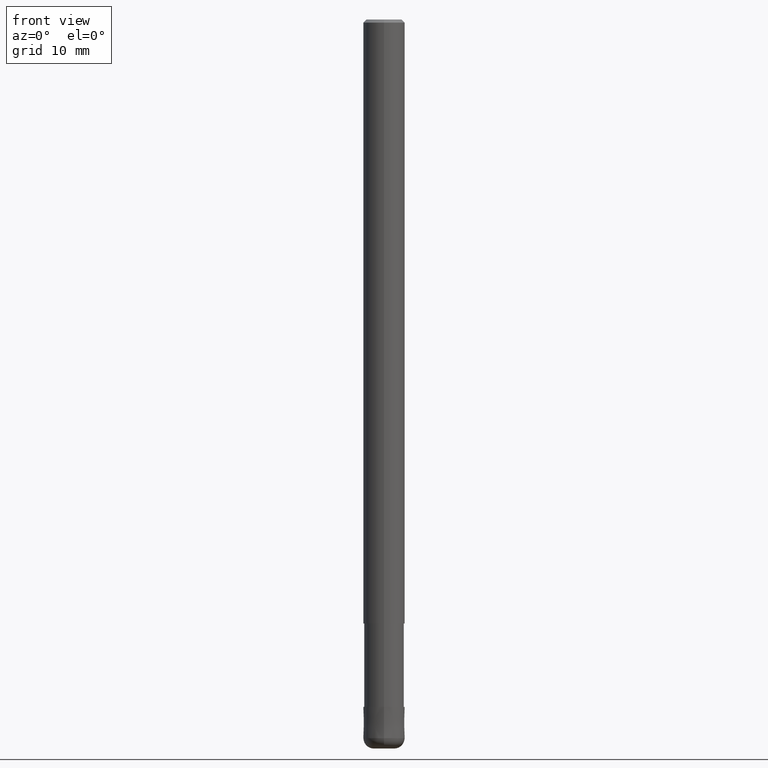
[diagram: clean part render]
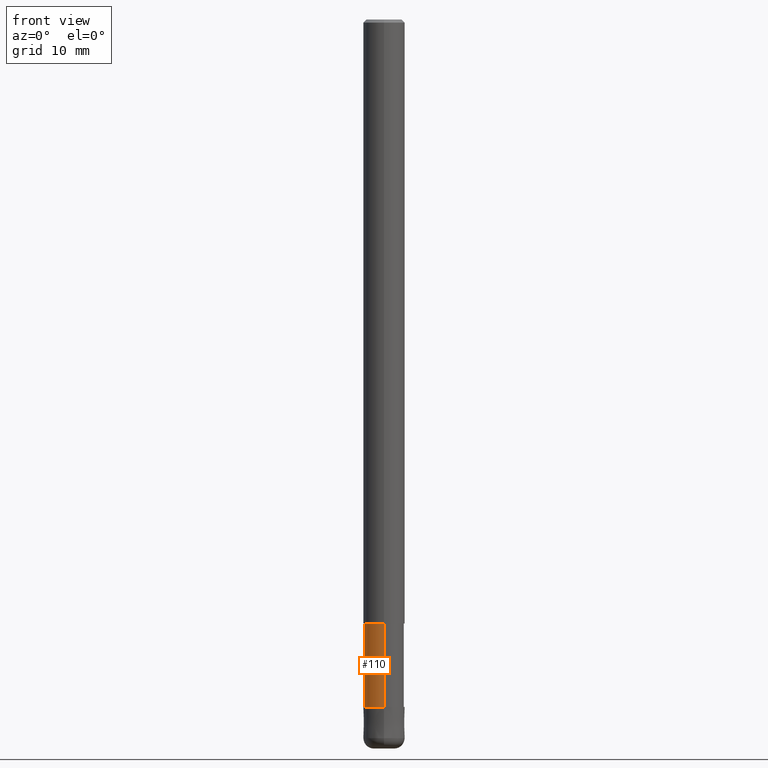
[diagram: same view with one face highlighted and labeled with its STEP entity id]
A machine part, front view. The second image highlights one B-rep face of the part: STEP entity #110.
In plain terms, the highlighted cylindrical surface (edge-blend (fillet) strip) has radius 1.91 mm, axis along (-0, -0, 1).
Its self-contained STEP definition (entity closure, byte-faithful):
#96=VERTEX_POINT('',#233);
#98=VERTEX_POINT('',#235);
#110=ADVANCED_FACE('',(#249),#250,.T.);
#120=VERTEX_POINT('',#263);
#136=EDGE_CURVE('',#98,#96,#279,.T.);
#142=EDGE_CURVE('',#194,#96,#286,.T.);
#194=VERTEX_POINT('',#345);
#196=EDGE_CURVE('',#120,#194,#347,.T.);
#206=EDGE_CURVE('',#98,#120,#359,.T.);
#233=CARTESIAN_POINT('',(0.0,1.90995,-66.0));
#235=CARTESIAN_POINT('',(2.33893690548305E-016,-1.90995,-66.0));
#249=FACE_OUTER_BOUND('',#398,.T.);
#250=CYLINDRICAL_SURFACE('',#399,1.90995);
#263=CARTESIAN_POINT('',(2.33893690548305E-016,-1.90995,-58.0));
#279=CIRCLE('',#435,1.90995);
#286=LINE('',#445,#446);
#345=CARTESIAN_POINT('',(0.0,1.90995,-58.0));
#347=CIRCLE('',#521,1.90995);
#359=LINE('',#534,#535);
#398=EDGE_LOOP('',(#564,#565,#566,#567));
#399=AXIS2_PLACEMENT_3D('',#568,#569,#570);
#435=AXIS2_PLACEMENT_3D('',#606,#607,#608);
#445=CARTESIAN_POINT('',(-2.33893690548305E-016,1.90995,-62.0));
#446=VECTOR('',#616,1.0);
#521=AXIS2_PLACEMENT_3D('',#693,#694,#695);
#534=CARTESIAN_POINT('',(2.33893690548305E-016,-1.90995,-62.0));
#535=VECTOR('',#712,1.0);
#564=ORIENTED_EDGE('',*,*,#142,.T.);
#565=ORIENTED_EDGE('',*,*,#136,.F.);
#566=ORIENTED_EDGE('',*,*,#206,.T.);
#567=ORIENTED_EDGE('',*,*,#196,.T.);
#568=CARTESIAN_POINT('',(0.0,0.0,-62.0));
#569=DIRECTION('',(-0.0,-0.0,1.0));
#570=DIRECTION('',(0.0,1.0,0.0));
#606=CARTESIAN_POINT('',(0.0,0.0,-66.0));
#607=DIRECTION('',(0.0,0.0,-1.0));
#608=DIRECTION('',(0.0,1.0,0.0));
#616=DIRECTION('',(0.0,0.0,-1.0));
#693=CARTESIAN_POINT('',(0.0,0.0,-58.0));
#694=DIRECTION('',(0.0,0.0,-1.0));
#695=DIRECTION('',(0.0,1.0,0.0));
#712=DIRECTION('',(-0.0,-0.0,1.0));